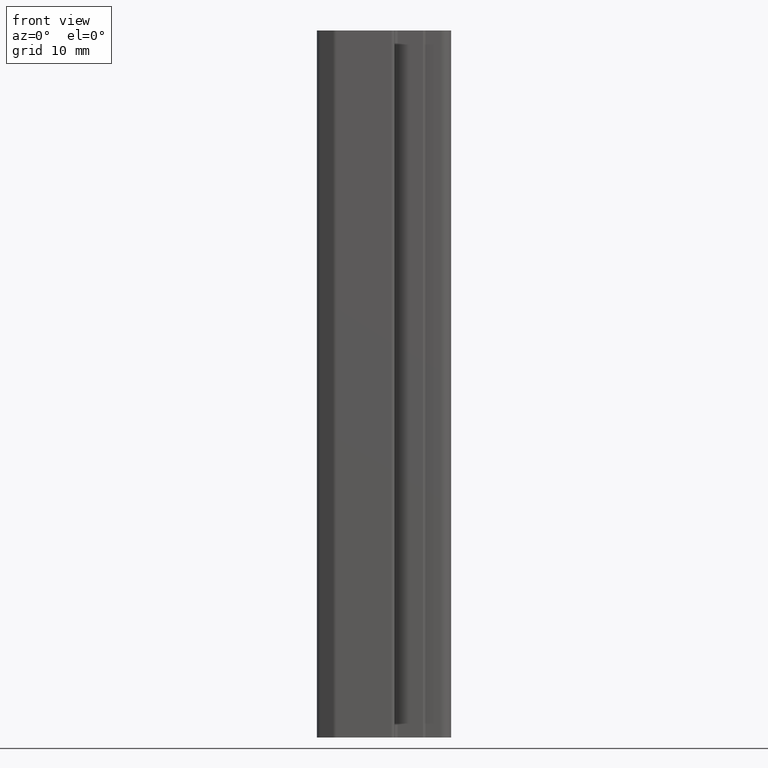
[diagram: clean part render]
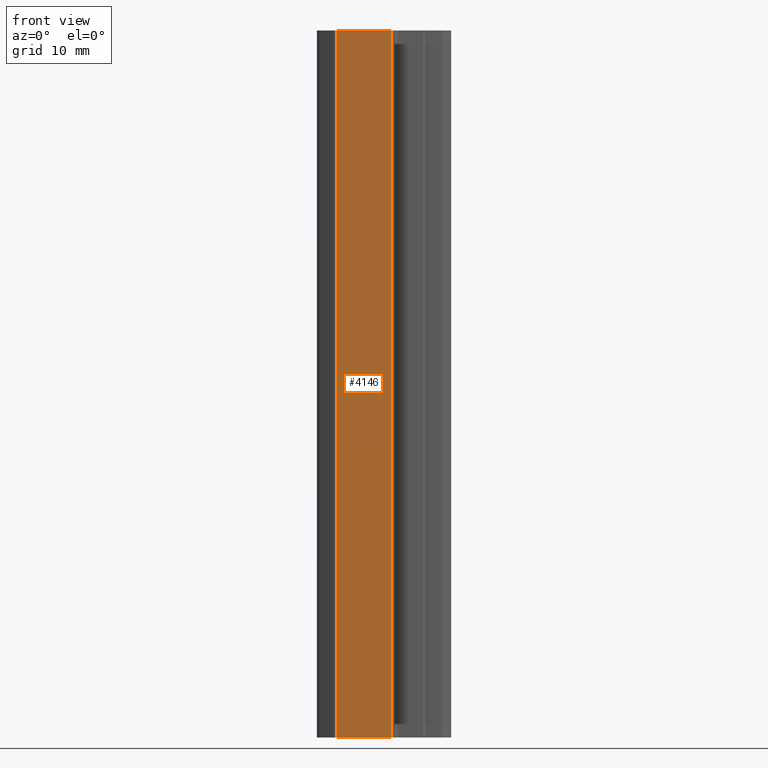
[diagram: same view with one face highlighted and labeled with its STEP entity id]
A machine part, front view. The second image highlights one B-rep face of the part: STEP entity #4146.
In plain terms, the highlighted planar face has unit normal (0, -1, 0).
Its self-contained STEP definition (entity closure, byte-faithful):
#140=FACE_OUTER_BOUND('',#342,.T.);
#342=EDGE_LOOP('',(#3119,#3120,#3121,#3122));
#793=LINE('',#6206,#1393);
#795=LINE('',#6210,#1395);
#796=LINE('',#6212,#1396);
#797=LINE('',#6213,#1397);
#1393=VECTOR('',#5074,10.);
#1395=VECTOR('',#5078,10.);
#1396=VECTOR('',#5079,10.);
#1397=VECTOR('',#5080,10.);
#1869=VERTEX_POINT('',#6203);
#1870=VERTEX_POINT('',#6205);
#1871=VERTEX_POINT('',#6209);
#1872=VERTEX_POINT('',#6211);
#2393=EDGE_CURVE('',#1870,#1869,#793,.T.);
#2395=EDGE_CURVE('',#1869,#1871,#795,.T.);
#2396=EDGE_CURVE('',#1872,#1871,#796,.T.);
#2397=EDGE_CURVE('',#1872,#1870,#797,.T.);
#3119=ORIENTED_EDGE('',*,*,#2395,.T.);
#3120=ORIENTED_EDGE('',*,*,#2396,.F.);
#3121=ORIENTED_EDGE('',*,*,#2397,.T.);
#3122=ORIENTED_EDGE('',*,*,#2393,.T.);
#3944=PLANE('',#4371);
#4146=ADVANCED_FACE('',(#140),#3944,.T.);
#4371=AXIS2_PLACEMENT_3D('',#6208,#5076,#5077);
#5074=DIRECTION('',(0.,0.,1.));
#5076=DIRECTION('center_axis',(0.,-1.,0.));
#5077=DIRECTION('ref_axis',(0.,0.,-1.));
#5078=DIRECTION('',(-1.,0.,0.));
#5079=DIRECTION('',(0.,0.,1.));
#5080=DIRECTION('',(1.,0.,0.));
#6203=CARTESIAN_POINT('',(1157.93717345288,1706.92192843935,100.));
#6205=CARTESIAN_POINT('',(1157.93717345288,1706.92192843935,0.));
#6206=CARTESIAN_POINT('',(1157.93717345288,1706.92192843935,0.));
#6208=CARTESIAN_POINT('Origin',(1157.93717345288,1706.92192843935,0.));
#6209=CARTESIAN_POINT('',(1150.20458701344,1706.92192843935,100.));
#6210=CARTESIAN_POINT('',(1150.20458701344,1706.92192843935,100.));
#6211=CARTESIAN_POINT('',(1150.20458701344,1706.92192843935,0.));
#6212=CARTESIAN_POINT('',(1150.20458701344,1706.92192843935,0.));
#6213=CARTESIAN_POINT('',(1150.20458701344,1706.92192843935,0.));